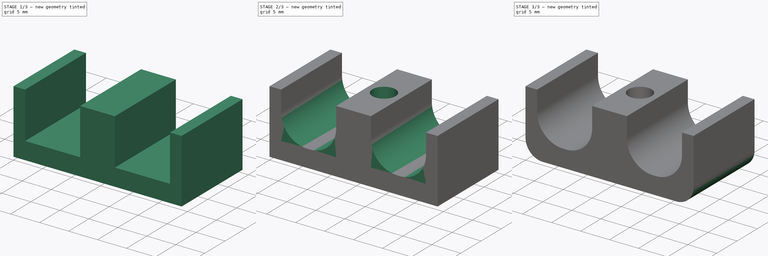
[diagram: build sequence overview — one tinted view per stage of 3, left to right]
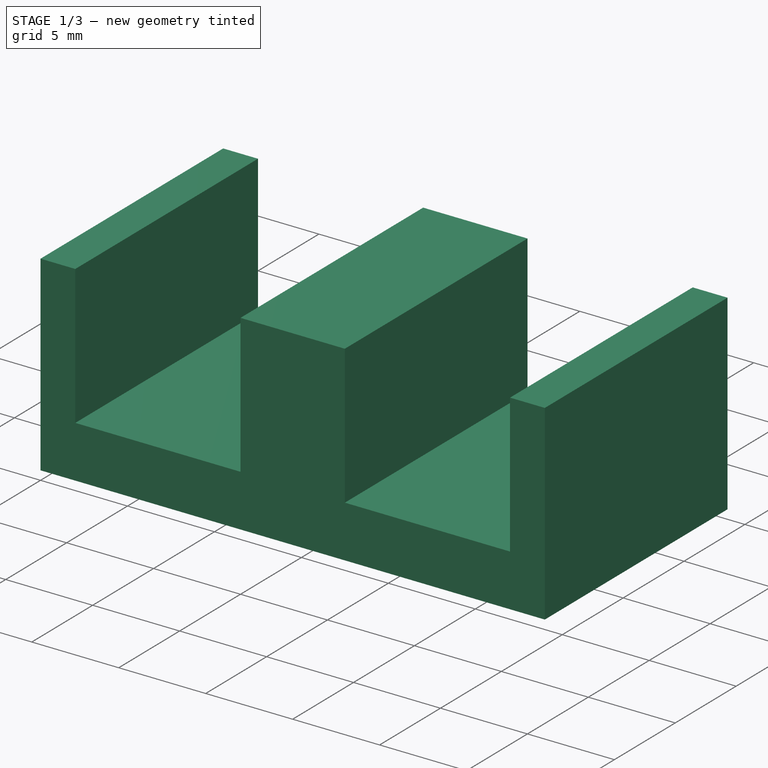
[diagram: stage 1 of 3 — iso view after this stage's code; geometry added in this stage tinted green]
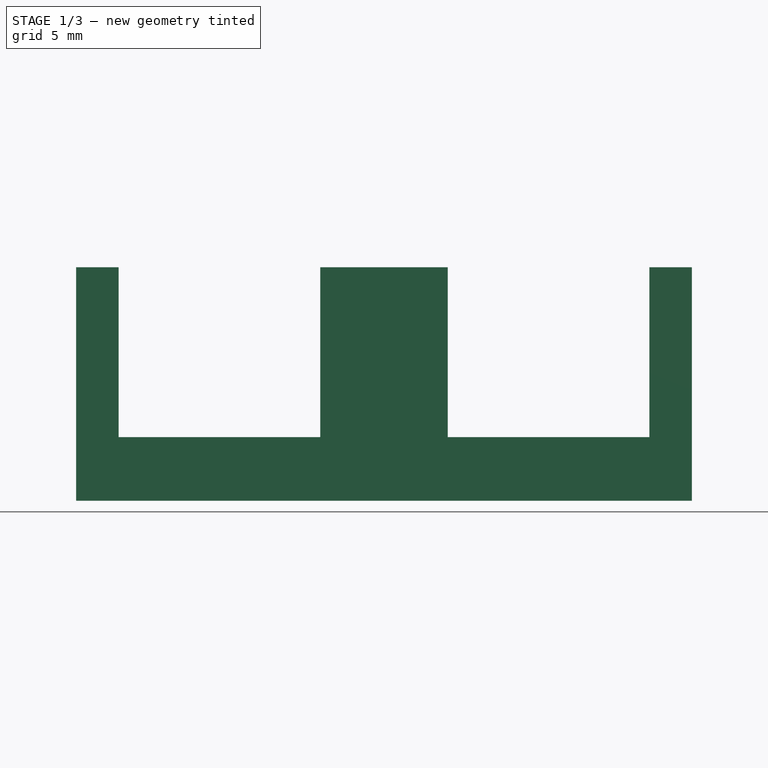
[diagram: stage 1 of 3 — front view after this stage's code; geometry added in this stage tinted green]
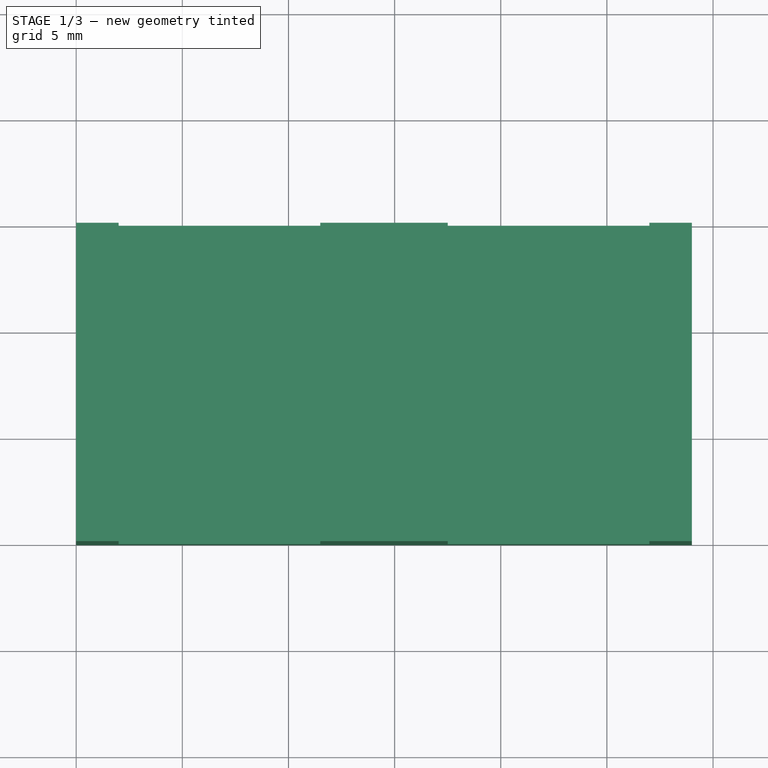
[diagram: stage 1 of 3 — top view after this stage's code; geometry added in this stage tinted green]
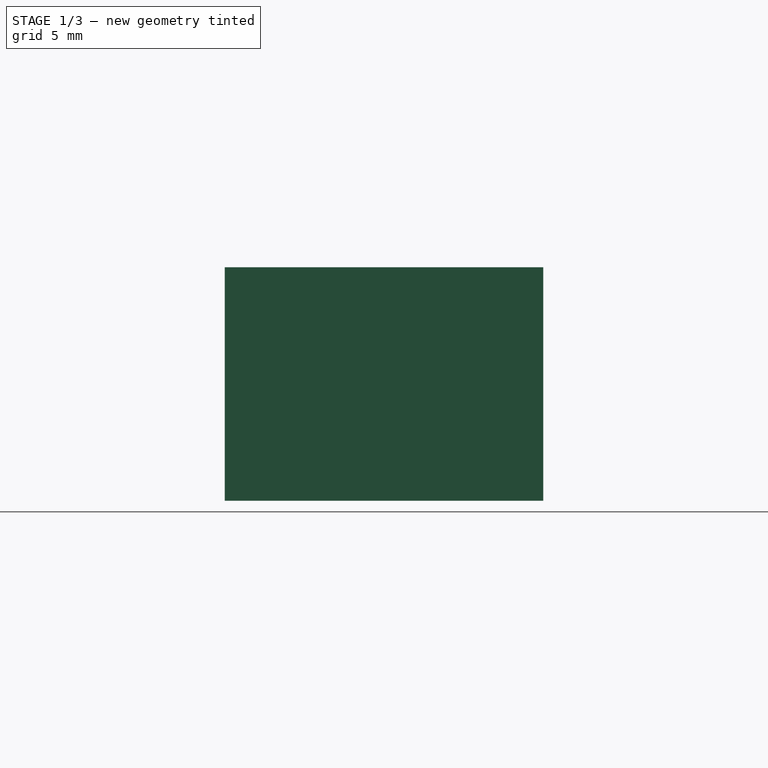
[diagram: stage 1 of 3 — right view after this stage's code; geometry added in this stage tinted green]
FCSTD DOCUMENT  (FreeCAD 0.18R16146 (Git))
Label: doubleDeanClampTop
License: All rights reserved
LicenseURL: http://en.wikipedia.org/wiki/All_rights_reserved
objects: Sketcher::SketchObject×3, PartDesign::Pad×2, PartDesign::Fillet×2, PartDesign::Pocket×1, PartDesign::Chamfer×1, PartDesign::Body×1
note: 13 computed .brp shape members not serialized (recipe doc carries the construction recipe); baked Part::Feature solids carry a one-line shape summary decoded from their .brp

FEATURE [Sketcher::SketchObject] Sketch
  MapMode = 5
  Support = -> [XY_Plane]
  sketch-geometry (4):
    g0: LineSegment StartX=0 StartY=0 StartZ=0 EndX=29 EndY=0 EndZ=0
    g1: LineSegment StartX=29 StartY=0 StartZ=0 EndX=29 EndY=15 EndZ=0
    g2: LineSegment StartX=29 StartY=15 StartZ=0 EndX=0 EndY=15 EndZ=0
    g3: LineSegment StartX=0 StartY=15 StartZ=0 EndX=0 EndY=0 EndZ=0
  constraints (11):
    c: Coincident(g0,g1)
    c: Coincident(g1,g2)
    c: Coincident(g2,g3)
    c: Coincident(g3,g0)
    c: Horizontal(g0)
    c: Horizontal(g2)
    c: Vertical(g1)
    c: Vertical(g3)
    c: Coincident(g0,g-1)
    c: Distance(g2) = 29
    c: Distance(g1) = 15
FEATURE [PartDesign::Pad] Pad
  Length = 3
  Length2 = 100
  Profile = -> Sketch
  Type = 0
FEATURE [Sketcher::SketchObject] Sketch001
  ExternalGeometry = -> [Pad]
  MapMode = 5
  Placement = pos=(0,0,3) rot=(0,0,1;0rad)
  Support = -> [Pad]
  sketch-geometry (13):
    g0: LineSegment StartX=0 StartY=15 StartZ=0 EndX=2 EndY=15 EndZ=0
    g1: LineSegment StartX=2 StartY=15 StartZ=0 EndX=2 EndY=0 EndZ=0
    g2: LineSegment StartX=2 StartY=0 StartZ=0 EndX=0 EndY=0 EndZ=0
    g3: LineSegment StartX=0 StartY=0 StartZ=0 EndX=0 EndY=15 EndZ=0
    g4: LineSegment StartX=11.5 StartY=15 StartZ=0 EndX=17.5 EndY=15 EndZ=0
    g5: LineSegment StartX=17.5 StartY=15 StartZ=0 EndX=17.5 EndY=0 EndZ=0
    g6: LineSegment StartX=17.5 StartY=0 StartZ=0 EndX=11.5 EndY=0 EndZ=0
    g7: LineSegment StartX=11.5 StartY=0 StartZ=0 EndX=11.5 EndY=15 EndZ=0
    g8: LineSegment StartX=29 StartY=15 StartZ=0 EndX=27 EndY=15 EndZ=0
    g9: LineSegment StartX=27 StartY=15 StartZ=0 EndX=27 EndY=0 EndZ=0
    g10: LineSegment StartX=27 StartY=0 StartZ=0 EndX=29 EndY=0 EndZ=0
    g11: LineSegment StartX=29 StartY=0 StartZ=0 EndX=29 EndY=15 EndZ=0
    g12: LineSegment [constr] StartX=14.5 StartY=15 StartZ=0 EndX=14.5 EndY=0 EndZ=0
  constraints (36):
    c: Coincident(g0,g1)
    c: Coincident(g1,g2)
    c: Coincident(g2,g3)
    c: Coincident(g3,g0)
    c: Horizontal(g0)
    c: Horizontal(g2)
    c: Vertical(g1)
    c: Vertical(g3)
    c: Coincident(g0,g-3)
    c: PointOnObject(g1,g-1)
    c: Coincident(g4,g5)
    c: Coincident(g5,g6)
    c: Coincident(g6,g7)
    c: Coincident(g7,g4)
    c: Horizontal(g4)
    c: Horizontal(g6)
    c: Vertical(g5)
    c: Vertical(g7)
    c: PointOnObject(g5,g-1)
    c: Coincident(g8,g9)
    c: Coincident(g9,g10)
    c: Coincident(g10,g11)
    c: Coincident(g11,g8)
    c: Horizontal(g8)
    c: Horizontal(g10)
    c: Vertical(g9)
    c: Vertical(g11)
    c: Coincident(g8,g-3)
    c: PointOnObject(g9,g-1)
    c: Distance(g0) = 2
    c: Equal(g0,g8)
    c: Distance(g4) = 6
    c: PointOnObject(g12,g6)
    c: Vertical(g12)
    c: Symmetric(g0,g8,g12)
    c: Symmetric(g4,g4,g12)
FEATURE [PartDesign::Pad] Pad001
  BaseFeature = -> Pad
  Length = 8
  Length2 = 100
  Profile = -> Sketch001
  Type = 0
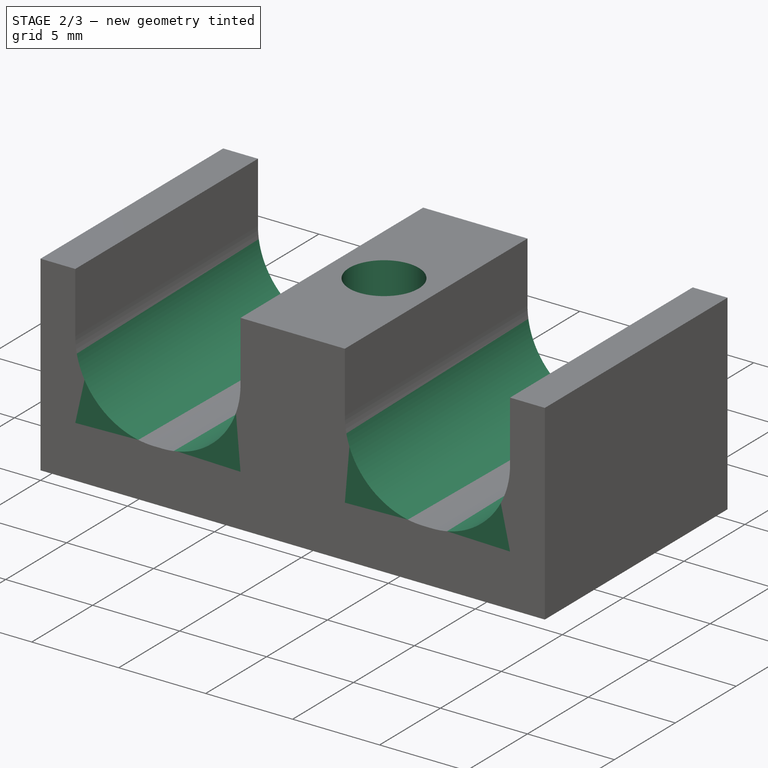
[diagram: stage 2 of 3 — iso view after this stage's code; geometry added in this stage tinted green]
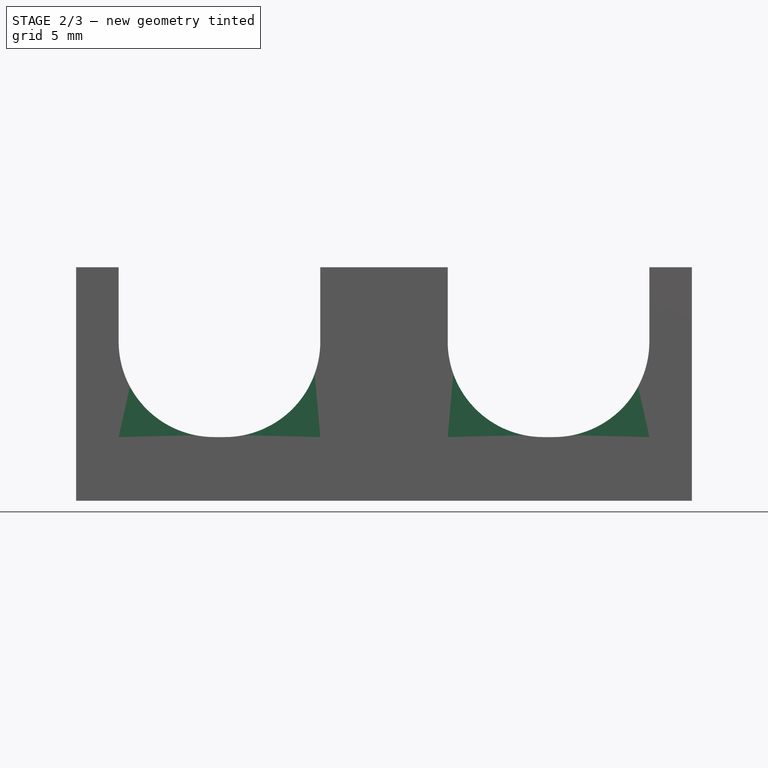
[diagram: stage 2 of 3 — front view after this stage's code; geometry added in this stage tinted green]
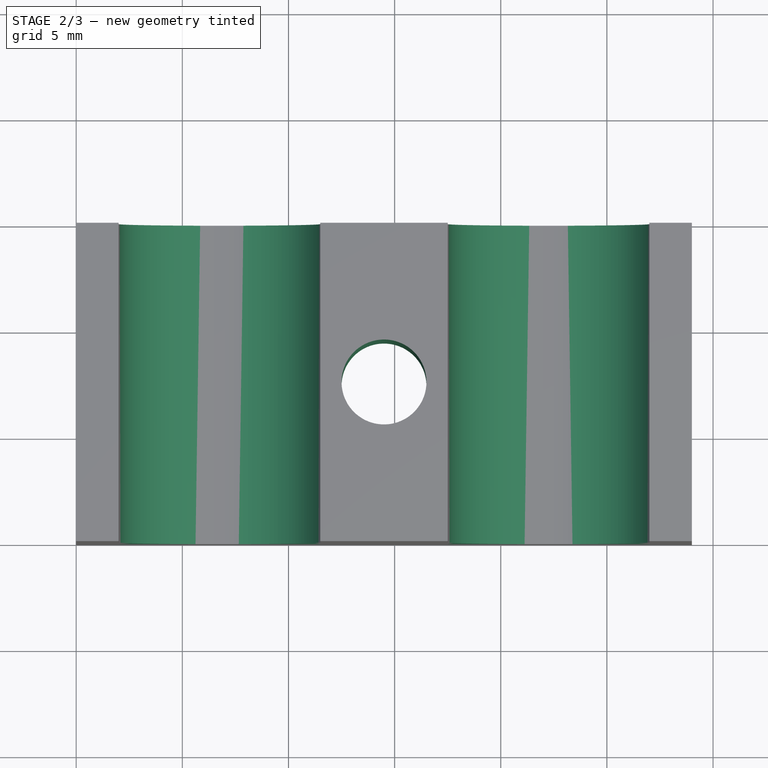
[diagram: stage 2 of 3 — top view after this stage's code; geometry added in this stage tinted green]
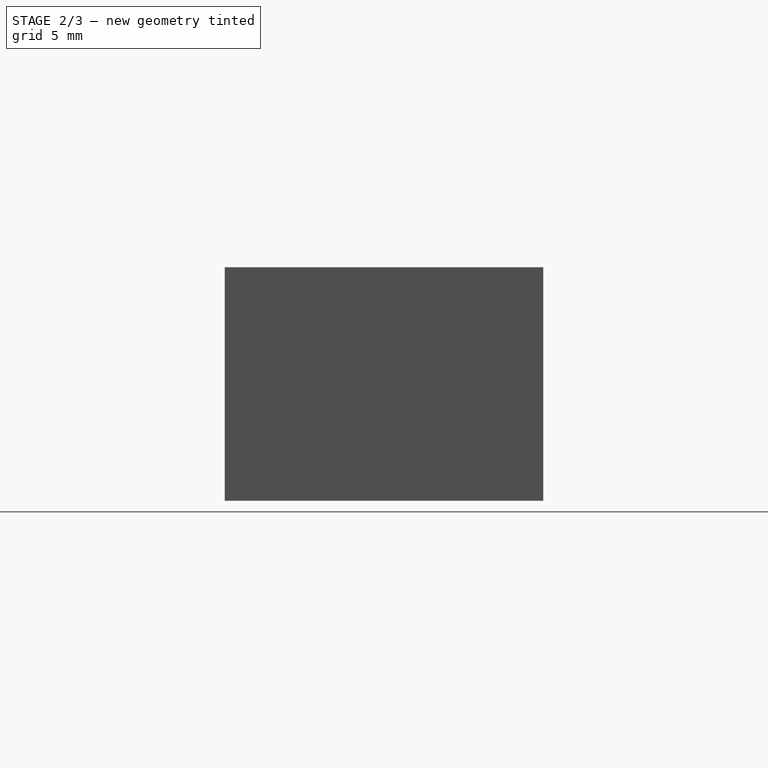
[diagram: stage 2 of 3 — right view after this stage's code; geometry added in this stage tinted green]
FEATURE [PartDesign::Fillet] Fillet
  Base = -> Pad001 [Edge19,Edge21,Edge25,Edge27]
  BaseFeature = -> Pad001
  Radius = 4.5
FEATURE [Sketcher::SketchObject] Sketch002
  ExternalGeometry = -> [Fillet]
  MapMode = 5
  Placement = pos=(0,0,0) rot=(1,0,0;3.14159rad)
  Support = -> [Fillet]
  sketch-geometry (3):
    g0: LineSegment [constr] StartX=14.5 StartY=-15 StartZ=0 EndX=14.5 EndY=0 EndZ=0
    g1: LineSegment [constr] StartX=0 StartY=-7.5 StartZ=0 EndX=29 EndY=-7.5 EndZ=0
    g2: Circle CenterX=14.5 CenterY=-7.5 CenterZ=0 NormalX=0 NormalY=0 NormalZ=1 AngleXU=0 Radius=2
  constraints (9):
    c: PointOnObject(g0,g-1)
    c: Vertical(g0)
    c: Symmetric(g-3,g-3,g0)
    c: PointOnObject(g1,g-4)
    c: Horizontal(g1)
    c: Symmetric(g-1,g-3,g1)
    c: Radius(g2) = 2
    c: PointOnObject(g2,g1)
    c: PointOnObject(g2,g0)
FEATURE [PartDesign::Pocket] Pocket
  BaseFeature = -> Fillet
  Length = 5
  Length2 = 100
  Profile = -> Sketch002
  Type = 1
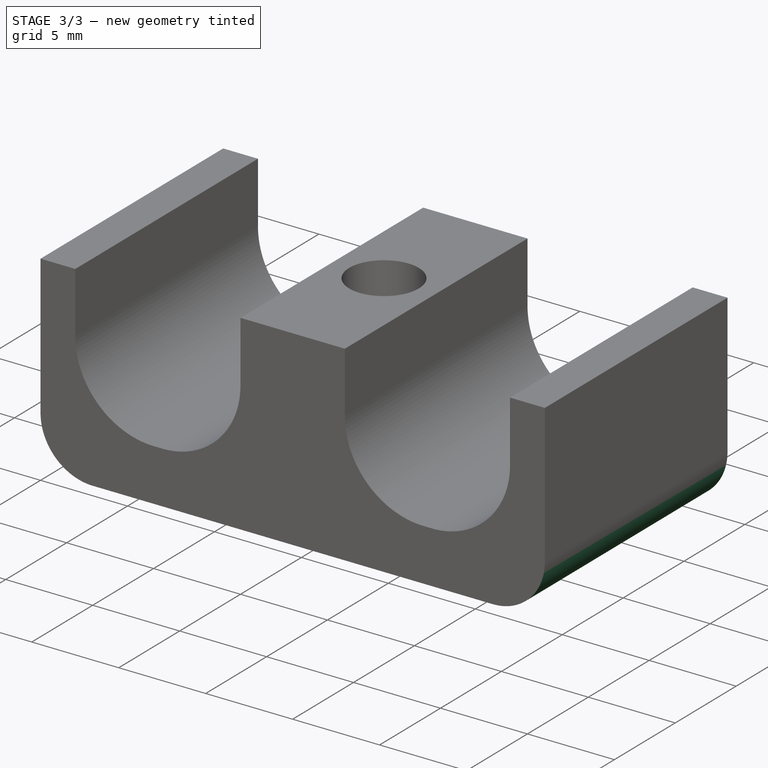
[diagram: stage 3 of 3 — iso view after this stage's code; geometry added in this stage tinted green]
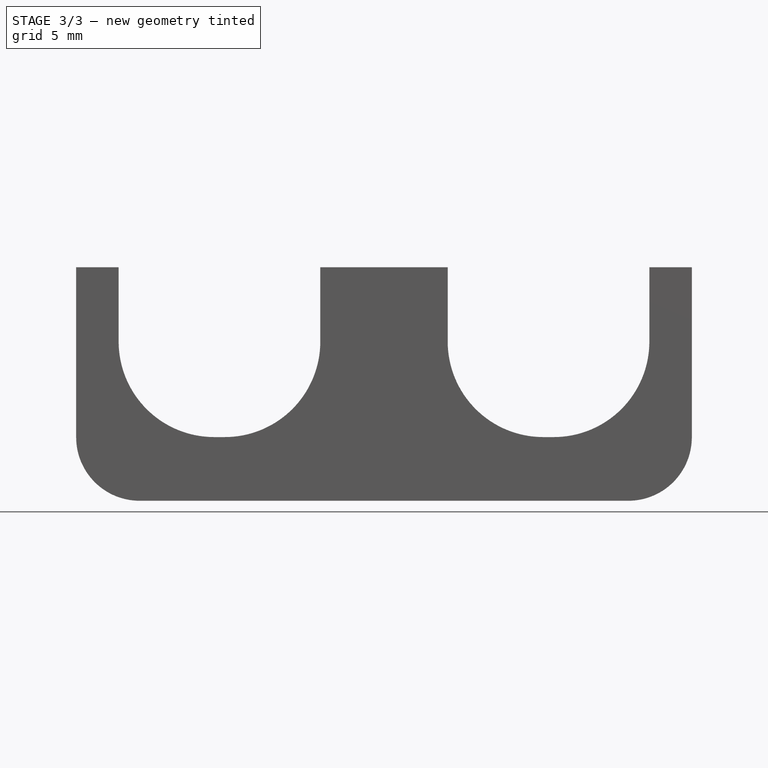
[diagram: stage 3 of 3 — front view after this stage's code; geometry added in this stage tinted green]
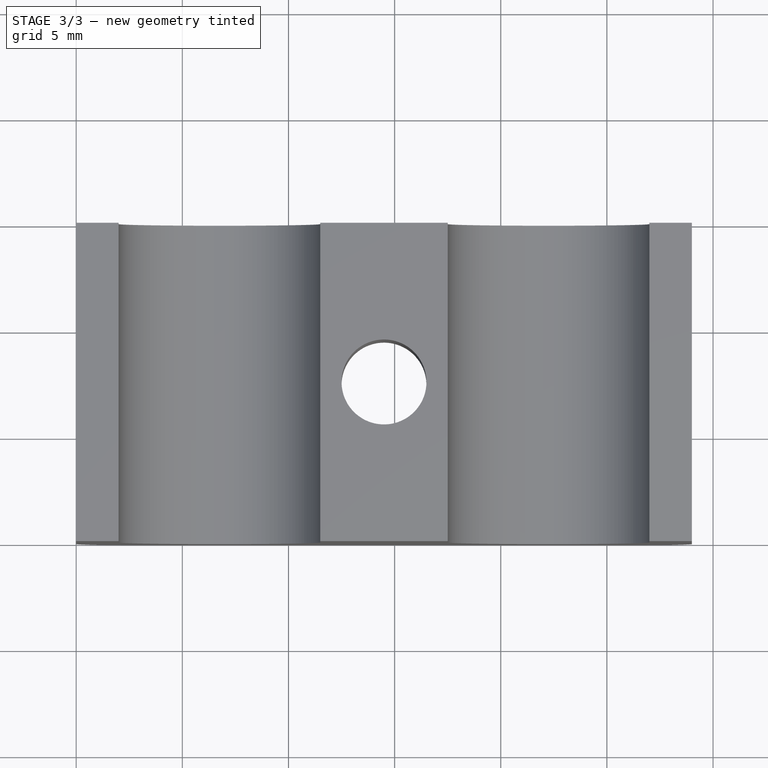
[diagram: stage 3 of 3 — top view after this stage's code; geometry added in this stage tinted green]
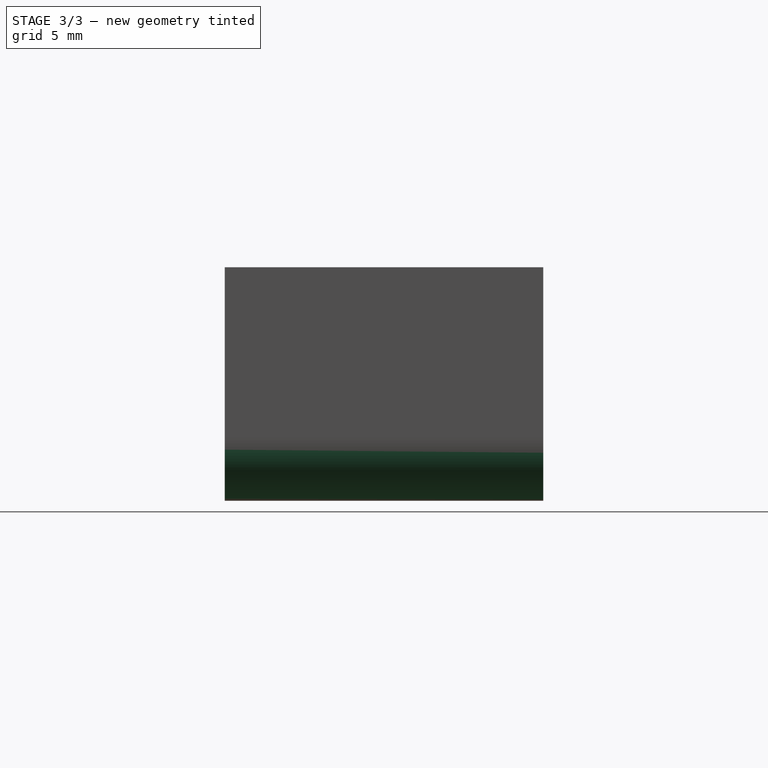
[diagram: stage 3 of 3 — right view after this stage's code; geometry added in this stage tinted green]
FEATURE [PartDesign::Chamfer] Chamfer
  Base = -> Pocket [Edge30]
  BaseFeature = -> Pocket
  Size = 2.5
FEATURE [PartDesign::Fillet] Fillet001
  Base = -> Chamfer [Edge3,Edge4]
  BaseFeature = -> Chamfer
  Radius = 2.99
FEATURE [PartDesign::Body] Body
  Group = -> [Sketch,Pad,Sketch001,Pad001,Fillet,Sketch002,Pocket,Chamfer,Fillet001]
  Origin = -> Origin
  Tip = -> Fillet001
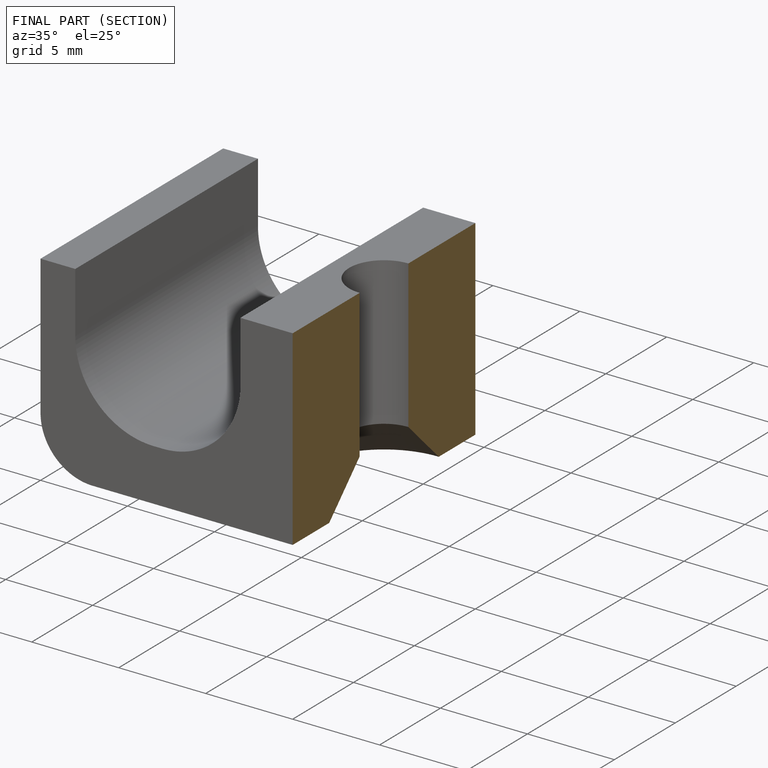
[diagram: finished part — half-section view (interior)]
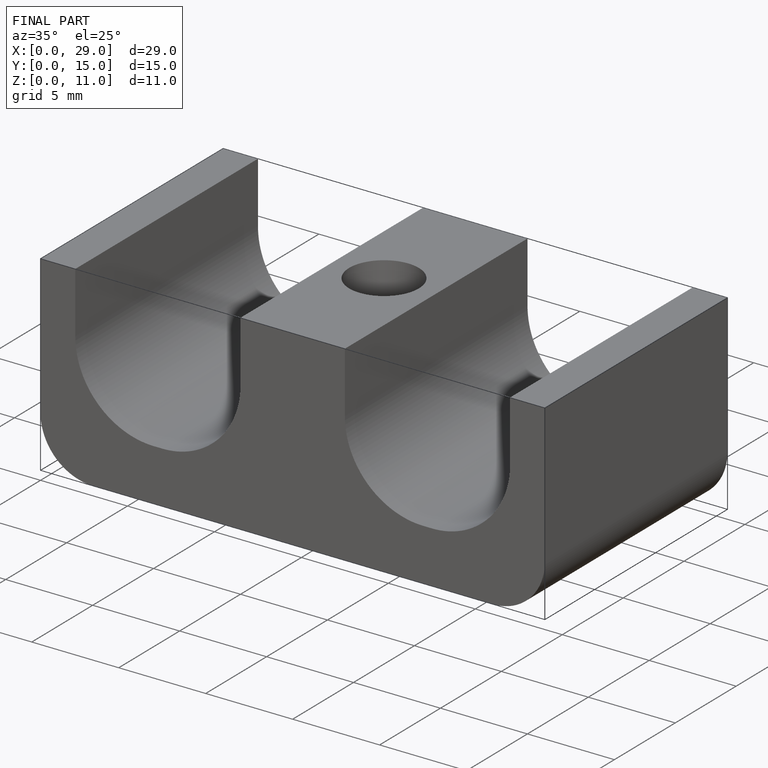
[diagram: finished part — iso view with bounding-box wireframe]
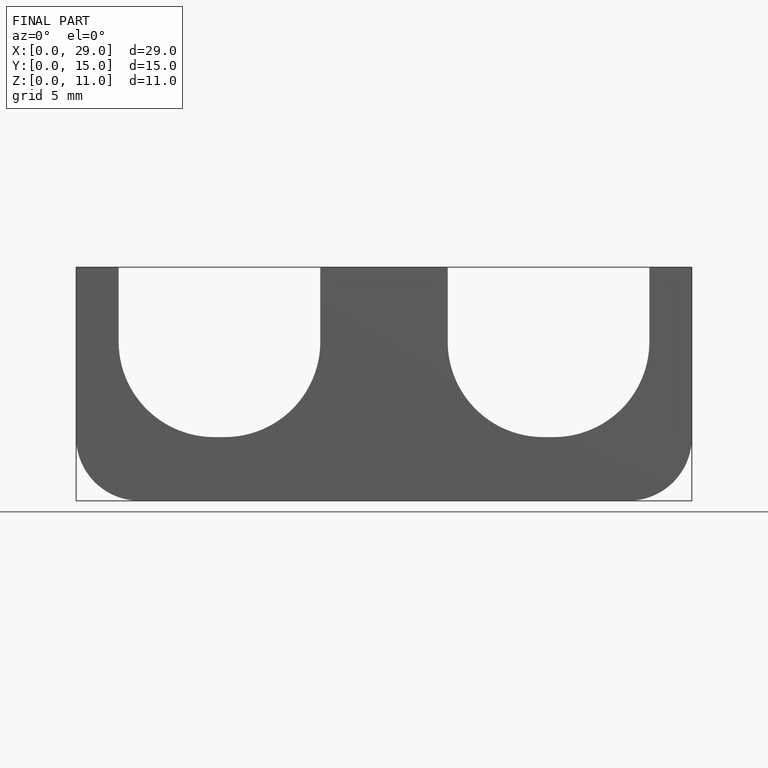
[diagram: finished part — front view with bounding-box wireframe]
